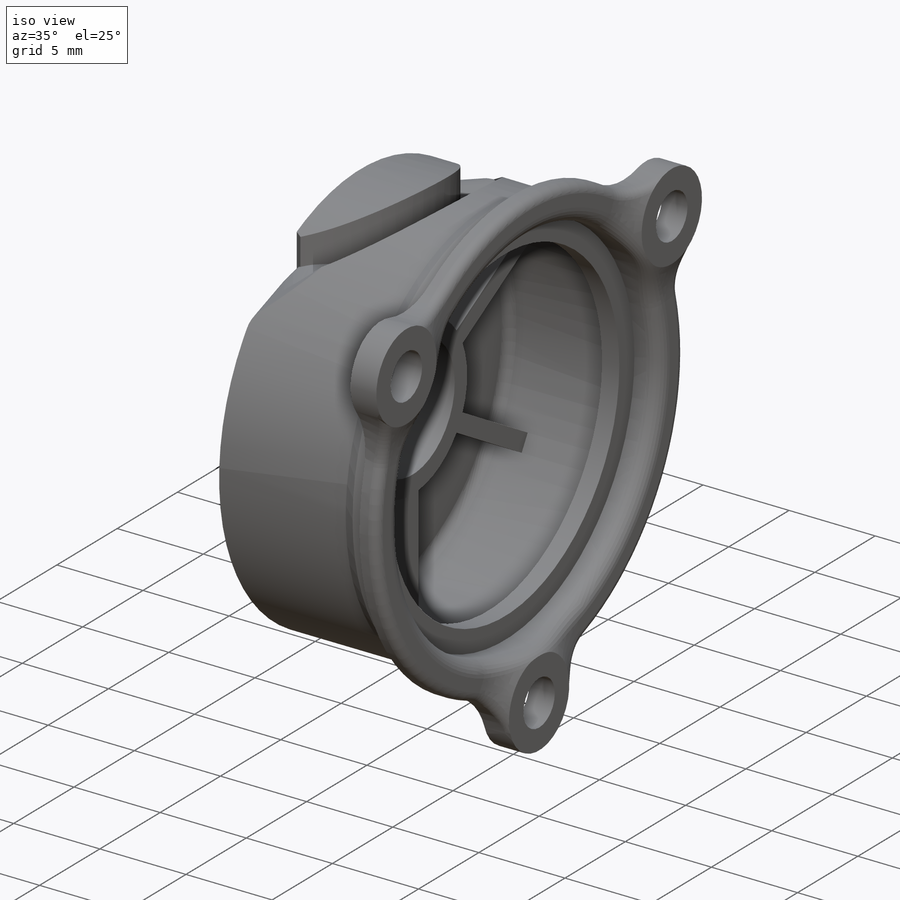
[diagram: iso view]
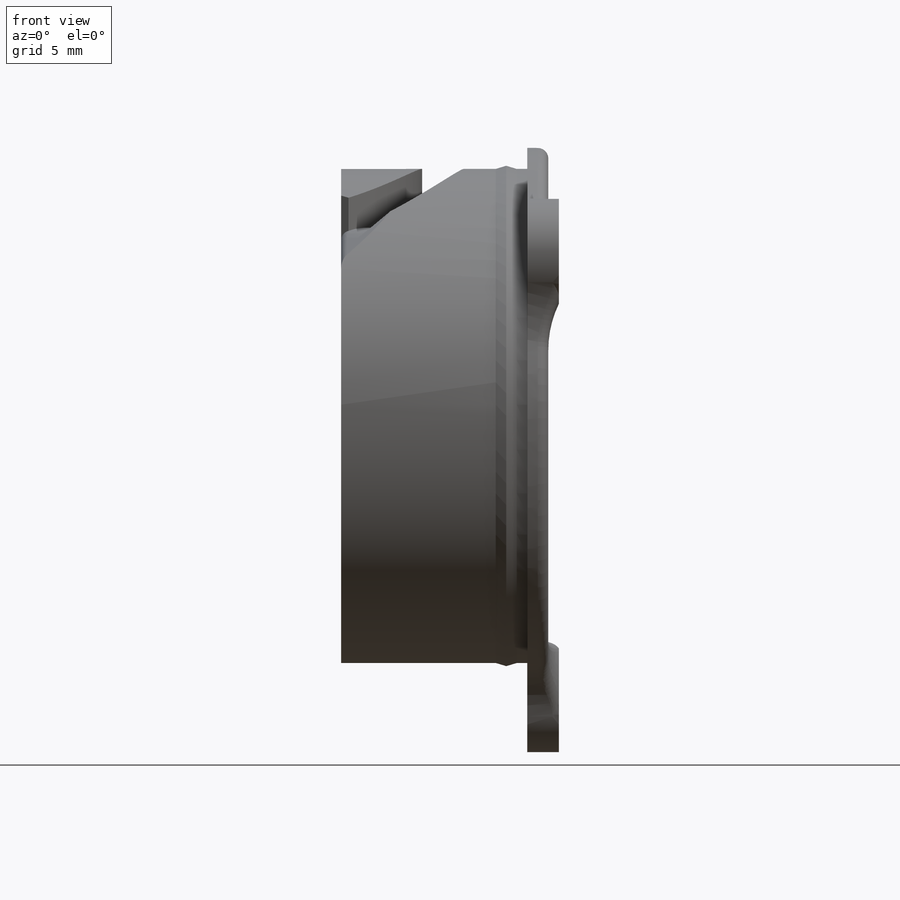
[diagram: front view]
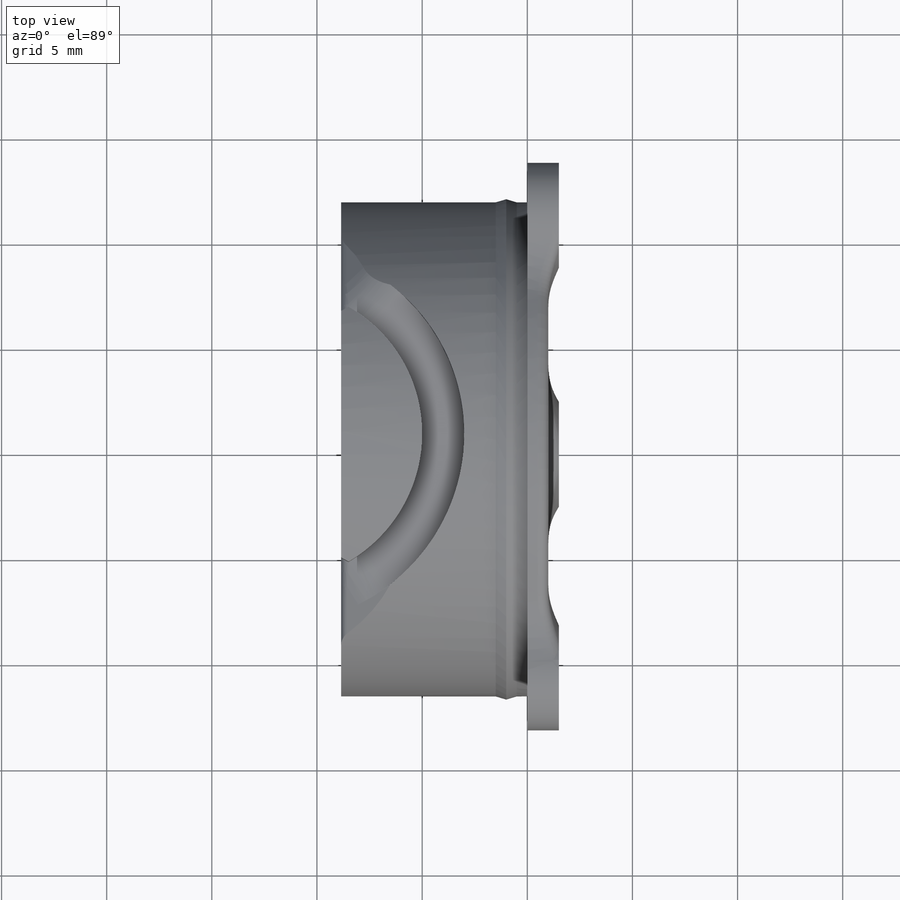
[diagram: top view]
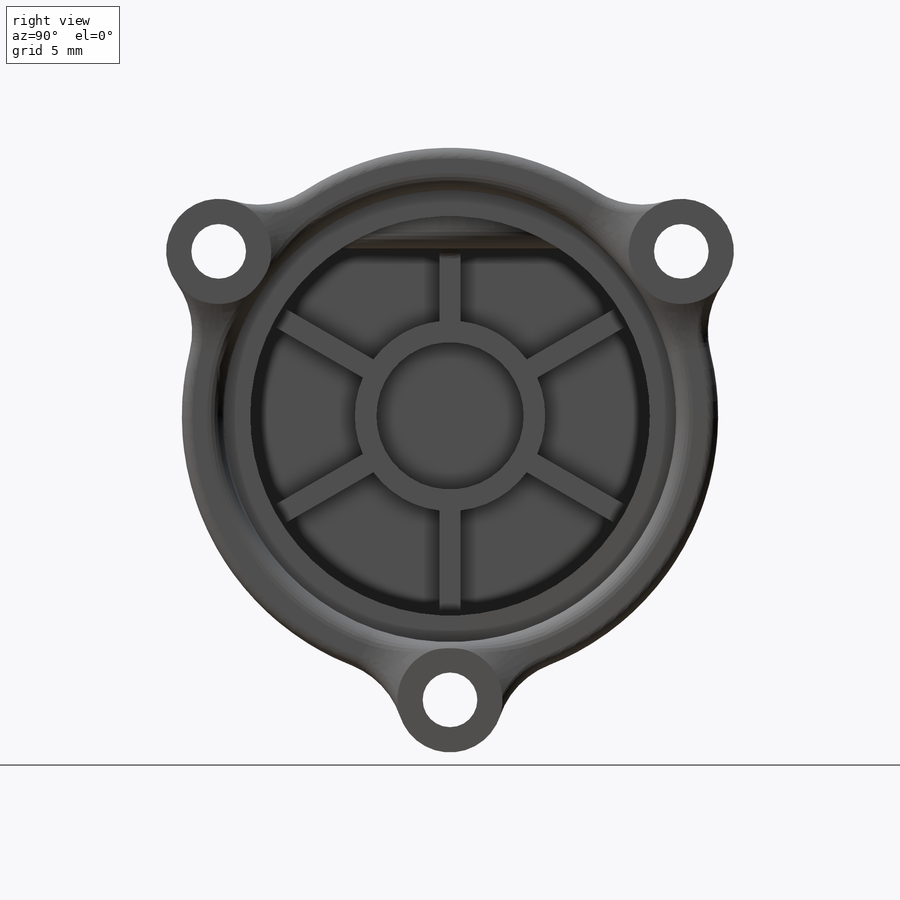
[diagram: right view]
SOLIDWORKS PART (.sldprt)
format: sldprt  version: not decoded by parser v0  size: 963,584 bytes
history: native  units: mm
features: sketch x13, fillet x10, extrude x6, cut_extrude x3, revolve x3, material x1, plane x1, shell x1, cut_revolve x1 + 2 further entries (+12 scaffold rows collapsed)
feature tree (53):
  scaffold x12  (default folders/planes/origin — collapsed)
  material  "PA Type 6"
  "Y-Axis"
  "Z-Axis"
  sketch  "Sketch1"  dims[D1=23.5mm D2=27.0mm D4=2.5mm D3=22.0mm]
  extrude  "Boss-Extrude1"  Depth=8.85mm
  sketch  "Sketch2"  dims[c1.D2=14.0mm c1.D3=18.0mm c1.D5=15.0mm c1.D6=~9.97194mm c1.D1=12.0mm c1.D4=0.55mm c2.D6=0.7mm c2.D7=3.0mm c2.D8=5.0mm]
  cut_extrude  "Cut-Extrude1"  Depth=6mm
  sketch  "Sketch5"  dims[D2=0.8mm D3=0.8mm D1=0.6mm D4=9.45mm D5=6.0mm D6=~3.502001mm]
  revolve  "Revolve1"  Angle=360deg
  plane  "Plane1"  Offset=8.5mm
  sketch  "Sketch11"  dims[c1.D1=0.55mm c1.D2=11.8mm c1.D3=~2.928879mm c2.D3=20.0deg c2.D4=~3.410233mm c3.D4=25.0deg c3.D5=10.0mm c3.D6=0.2mm c3.D1=5.0mm c4.D1=20.0deg c4.D2=5.0mm c5.D2=35.0deg]
  cut_extrude  "Cut-Extrude2"  Depth=5mm
  fillet  "Fillet12"  Radius=3mm
  shell  "Shell1"  Thickness=1mm
  sketch  "Sketch3"  dims[c1.D1=2.6mm c1.D2=4.0mm c1.D3=23.5mm c1.D4=2.5mm c2.D3=1.0mm]
  extrude  "Boss-Extrude2"  Depth=1.5mm
  sketch  "Sketch4"
  extrude  "Boss-Extrude3"  Depth=0.5mm
  fillet  "Fillet1"  Radius=5mm
  fillet  "Fillet2"  Radius=1mm
  sketch  "Sketch6"  dims[c1.D2=7.0mm c1.D1=1.0mm c2.D2=~5.472662mm c3.D2=~58.381643deg c4.D2=~3.454189mm c5.D2=~50.791049deg c5.D3=~5.445282mm c6.D3=~63.080712deg]
  extrude  "Boss-Extrude4"  Depth=2mm
  fillet  "Fillet3"  Radius=0.5mm
  sketch  "Sketch7"  dims[c1.D5=0.8mm c1.D1=1.8mm c1.D2=23.8mm c1.D3=9.5mm c1.D4=1.0mm c2.D2=20.8mm c2.D3=1.0mm c2.D4=1.0mm c2.D6=1.0mm c2.D7=0.5mm c2.D8=1.0mm c2.D9=16.0mm c2.D10=0.9mm]
  revolve  "Revolve2"  Angle=360deg
  sketch  "Sketch12"
  cut_revolve  "Cut-Revolve1"  Angle=360deg
  sketch  "Sketch13"  dims[D1=0.0mm]
  cut_extrude  "Cut-Extrude3"  Depth=3mm
  fillet  "Fillet4"  Radius=0.8mm
  sketch  "Sketch8"  dims[D1=0.5mm D2=1.0mm D3=~0.133975mm]
  revolve  "Revolve3"  Angle=190deg
  sketch  "Sketch9"  dims[D1=0.0mm]
  extrude  "Boss-Extrude5"  [1 undecoded]
  sketch  "Sketch10"  dims[D1=0.0mm]
  extrude  "Boss-Extrude6"  [1 undecoded]
  fillet  "Fillet6"  Radius=0.5mm
  fillet  "Fillet7"  Radius=0.5mm
  fillet  "Fillet8"  Radius=0.5mm
  fillet  "Fillet9"  Radius=0.5mm
  fillet  "Fillet13"  Radius=0.5mm
decode coverage: 33 of 37 modeling features carry decoded parameters; 2 rows unclassified (native names shown)
note: ~ marks probable driven/reference dimensions
note: 2 parameter values undecoded
note: suppression state not decoded; provenance and decode notes live in map.json
